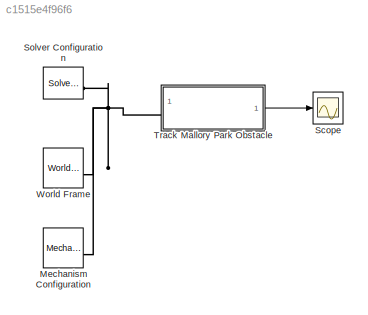
MODEL slx_c1515e4f96f6
KIND model
CONFIG AbsTol = auto
CONFIG EnableMultiTasking = on
CONFIG FixedStep = auto
CONFIG MaxStep = auto
CONFIG MinStep = auto
CONFIG RelTol = 1e-3
CONFIG SampleTimeConstraint = Unconstrained
CONFIG SolverName = VariableStepAuto
CONFIG StartTime = 0.0
CONFIG StopTime = 100
BLOCK [Reference] Mechanism Configuration  REF=sm_lib/Utilities/Mechanism
Configuration
  SourceBlock = sm_lib/Utilities/Mechanism\nConfiguration
  SourceType = Mechanism\nConfiguration
BLOCK [Scope] Scope
  ActiveDisplayYMaximum = 3.25
  ActiveDisplayYMinimum = 0.75
  DataLoggingDecimateData = on
  DataLoggingDecimation = 1
  DataLoggingLimitDataPoints = on
  DataLoggingSaveFormat = Array
  Floating = off
  GraphicalSettings = {"GraphicalSettings":{"LegacySettings":true,"Style":{"Style":{"AxesColor":"[0 0 0]","ChannelNames":[""],"ColorOrder":"[1 1 0.0666666666666667;0.0745098039215686 0.623529411764706 1;1 0.411764705882353 0.16078431372549;0.392156862745098 0.831372549019608 0.0745098039215686;0.717647058823529 0.274509803921569 1;0.0588235294117647 1 1;1 0.0745098039215686 0.650980392156863]","CurrentConfiguration":"e...<+343ch>
  MultipleDisplayCache = [{"MaxYLimMag":3.25,"MaxYLimReal":3.25,"MinYLimMag":0.75,"MinYLimReal":0.75,"PlotAsMagnitudePhase":false,"ShowGrid":true,"ShowLegend":false,"Title":"%<SignalLabel>","YLabel":""}]
  NumInputPorts = 1
  WasSavedAsWebScope = on
  WindowPosition = [810 662 324 239]
BLOCK [Reference] Solver Configuration  REF=nesl_utility/Solver
Configuration
  SourceBlock = nesl_utility/Solver\nConfiguration
  SourceType = Solver\nConfiguration
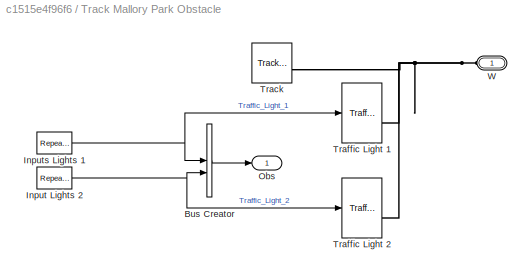
BLOCK [SubSystem] Track Mallory Park Obstacle
  AncestorBlock = sm_car_scene_track_mallory_park_obstacle/Track Mallory Park Obstacle
BLOCK [BusCreator] Track Mallory Park Obstacle/Bus Creator
  DisplayOption = bar
  InheritFromInputs = on
  Inputs = 2
BLOCK [Reference] Track Mallory Park Obstacle/Input Lights 2  REF=simulink/Sources/Repeating
Sequence
  SourceBlock = simulink/Sources/Repeating\nSequence
  SourceType = Repeating table
BLOCK [Reference] Track Mallory Park Obstacle/Inputs Lights 1  REF=simulink/Sources/Repeating
Sequence
  NameLocation = top
  SourceBlock = simulink/Sources/Repeating\nSequence
  SourceType = Repeating table
BLOCK [Outport] Track Mallory Park Obstacle/Obs
  VectorParamsAs1DForOutWhenUnconnected = off
BLOCK [Reference] Track Mallory Park Obstacle/Track  REF=Scene_Utilities/Track Extrusion
  SourceBlock = Scene_Utilities/Track Extrusion
BLOCK [Reference] Track Mallory Park Obstacle/Traffic Light 1  REF=Object_Traffic_Light/Traffic Light Pole
  SourceBlock = Object_Traffic_Light/Traffic Light Pole
BLOCK [Reference] Track Mallory Park Obstacle/Traffic Light 2  REF=Object_Traffic_Light/Traffic Light Pole
  SourceBlock = Object_Traffic_Light/Traffic Light Pole
BLOCK [PMIOPort] Track Mallory Park Obstacle/W
  Side = Left
BLOCK [Reference] World Frame  REF=sm_lib/Frames and
Transforms/World Frame
  SourceBlock = sm_lib/Frames and\nTransforms/World Frame
  SourceType = World Frame
LINE Track Mallory Park Obstacle:1 -> Scope:1
PNET net1: Mechanism Configuration:RConn1 -- Solver Configuration:RConn1 -- Track Mallory Park Obstacle:LConn1 -- World Frame:RConn1
note: PNET lines group multi-terminal physical nets as a canonical sorted terminal list (undirected conserving connections); 2-terminal nets keep the pairwise PLINE form
